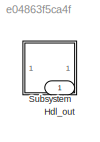
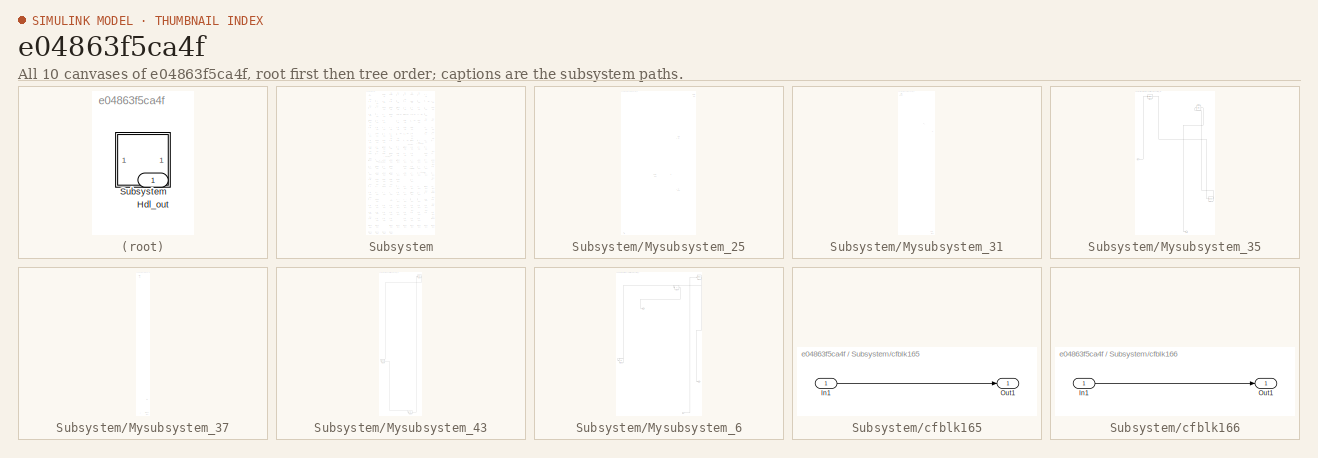
[diagram: thumbnail index - all 10 canvases of the model, root first then tree order]
MODEL slx_e04863f5ca4f
KIND model
CONFIG AbsTol = auto
CONFIG EnableMultiTasking = off
CONFIG FixedStep = auto
CONFIG MaxStep = auto
CONFIG MinStep = auto
CONFIG RelTol = 1e-3
CONFIG SampleTimeConstraint = Unconstrained
CONFIG SolverName = VariableStepAuto
CONFIG StartTime = 0.0
CONFIG StopTime = 10.0
BLOCK [Outport] Hdl_out
  OutDataTypeStr = uint8
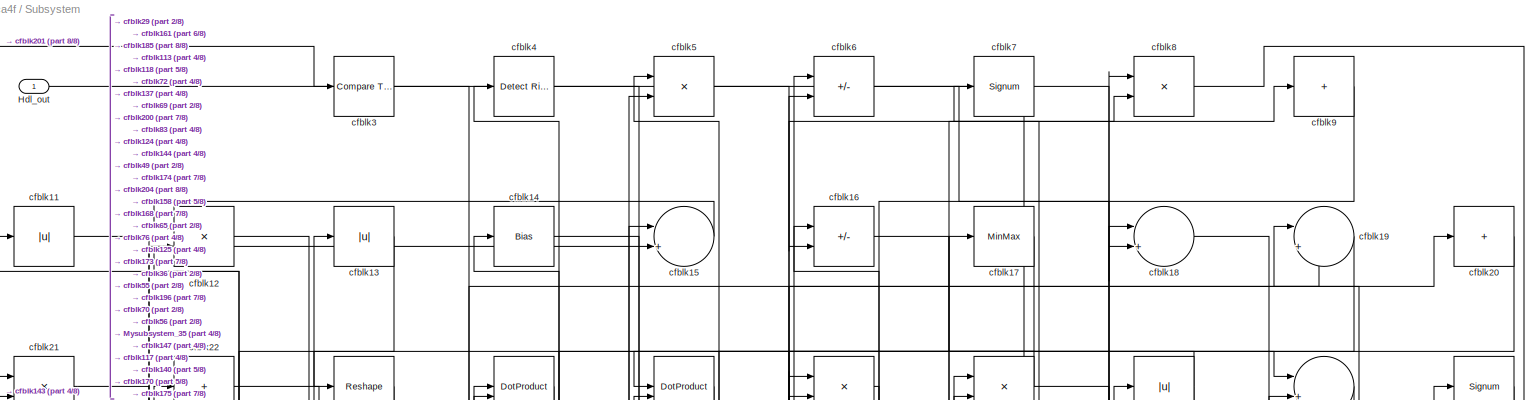
[diagram: Subsystem - part 1/8, full width, top band]
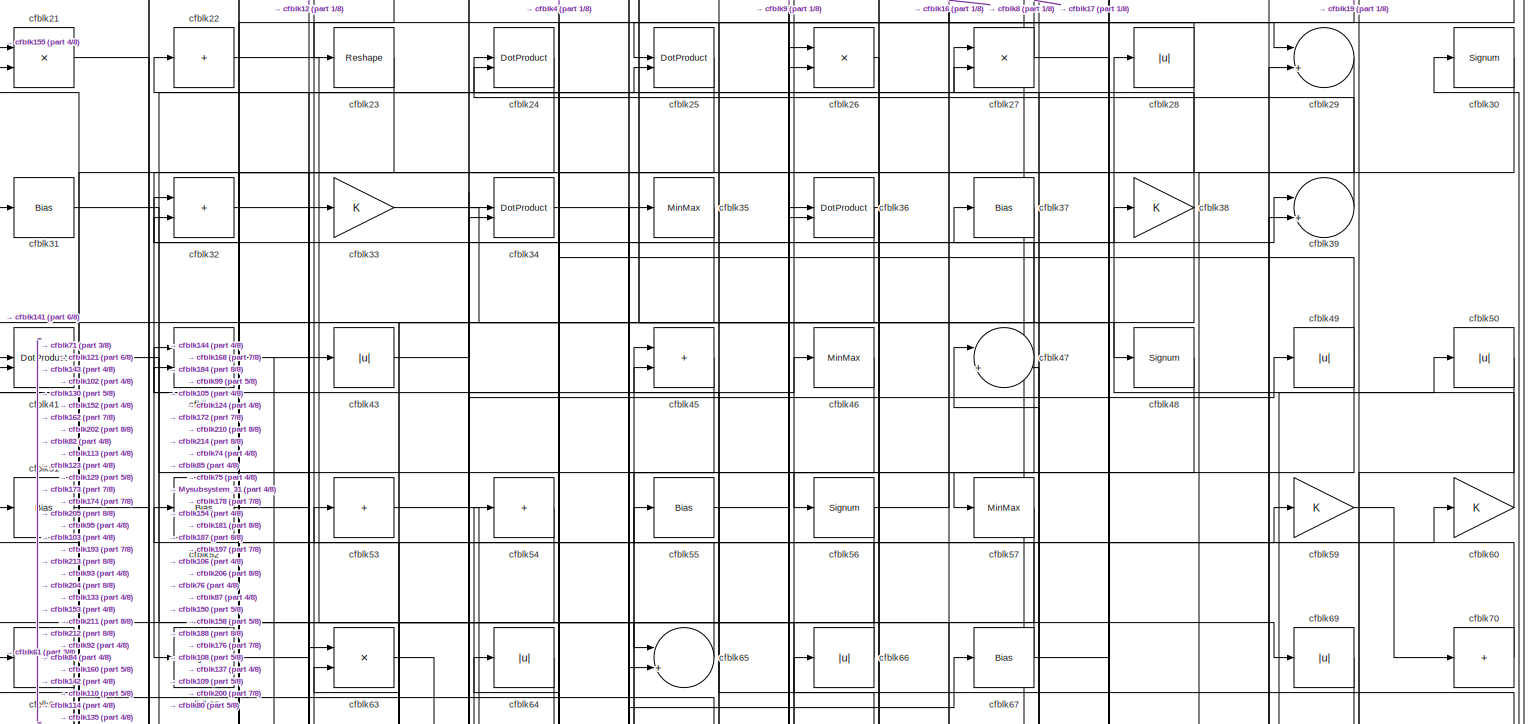
[diagram: Subsystem - part 2/8, full width, top band]
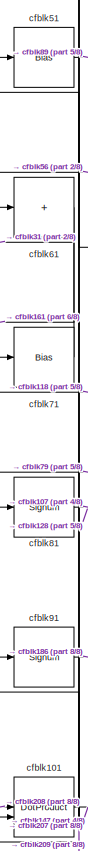
[diagram: Subsystem - part 3/8, middle left region]
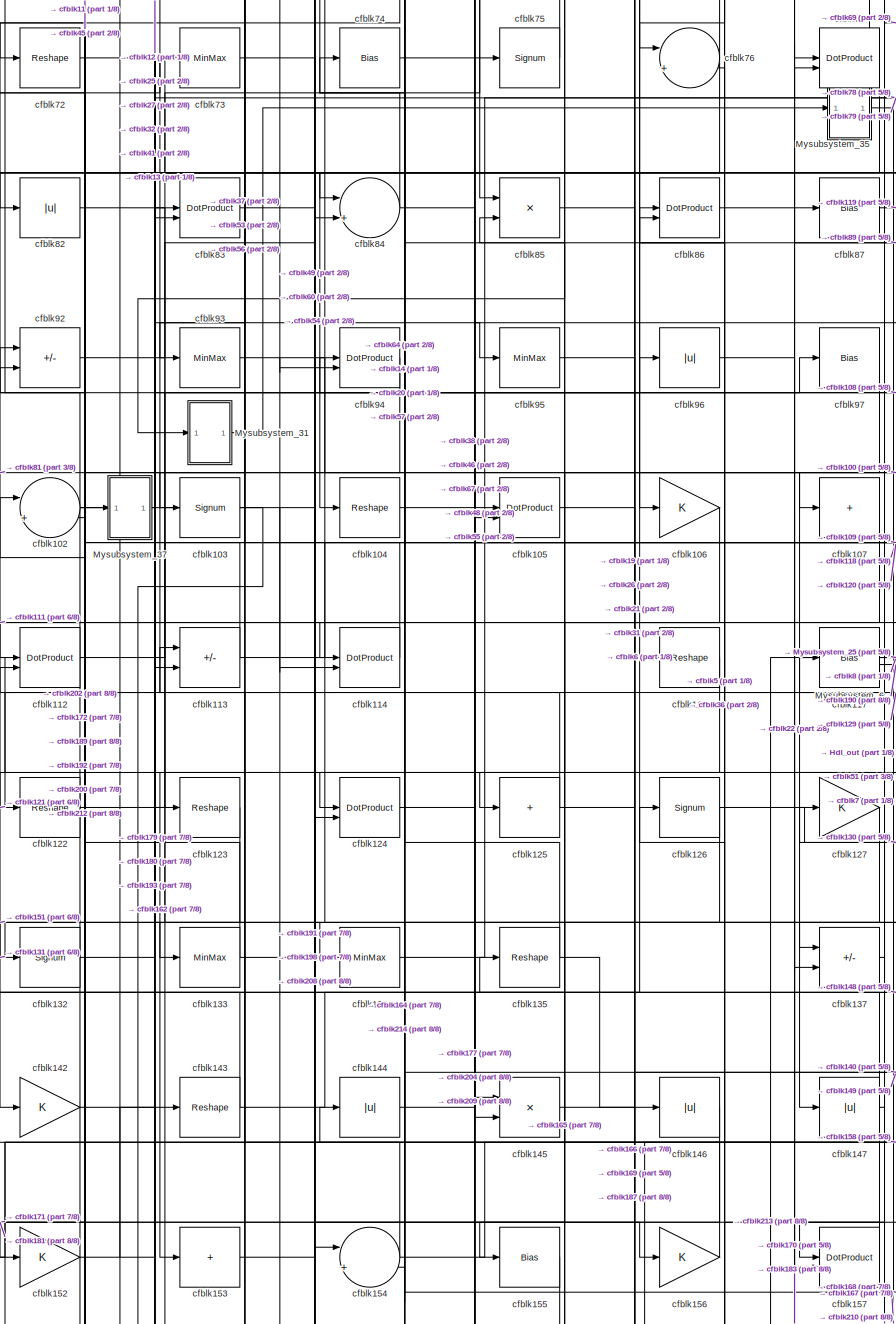
[diagram: Subsystem - part 4/8, central region]
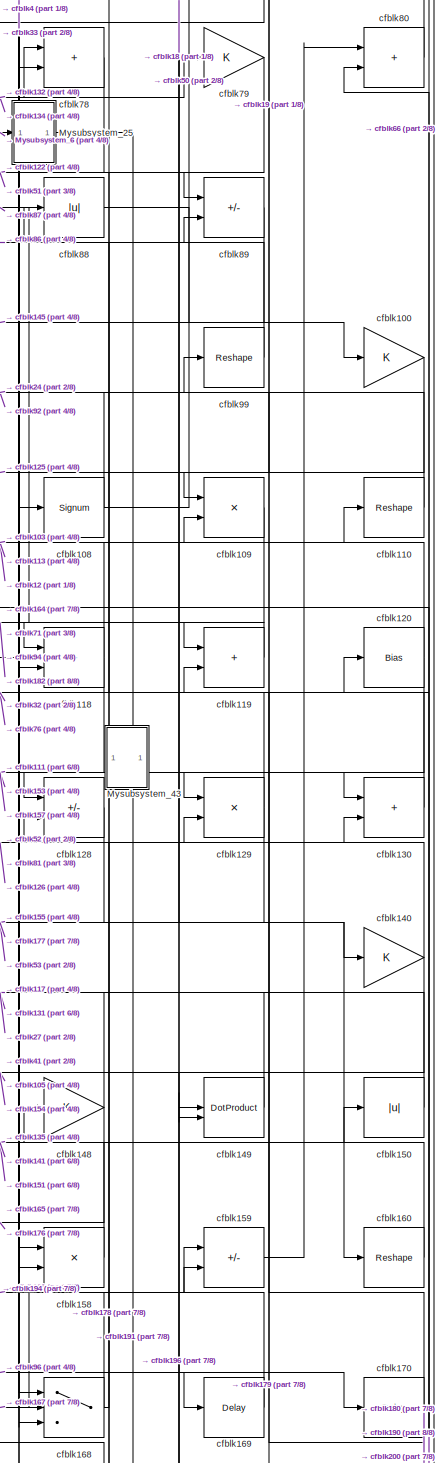
[diagram: Subsystem - part 5/8, middle right region]
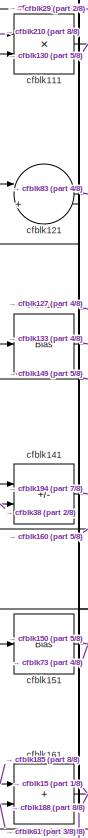
[diagram: Subsystem - part 6/8, middle left region]
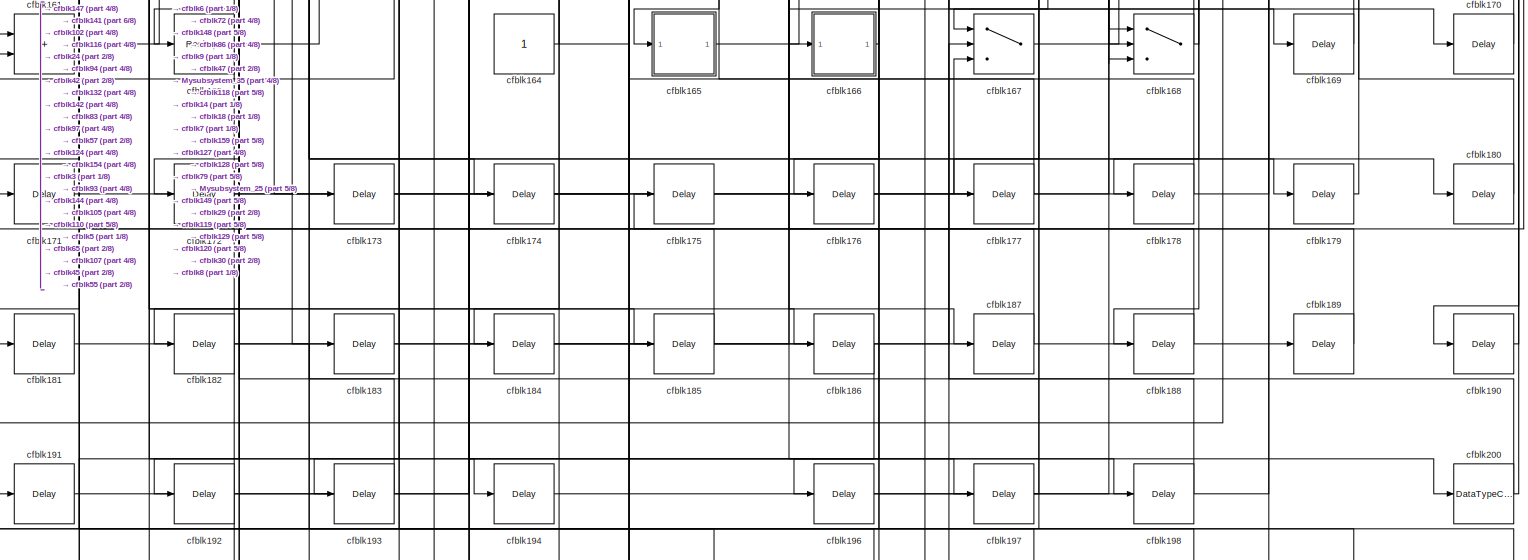
[diagram: Subsystem - part 7/8, full width, bottom band]
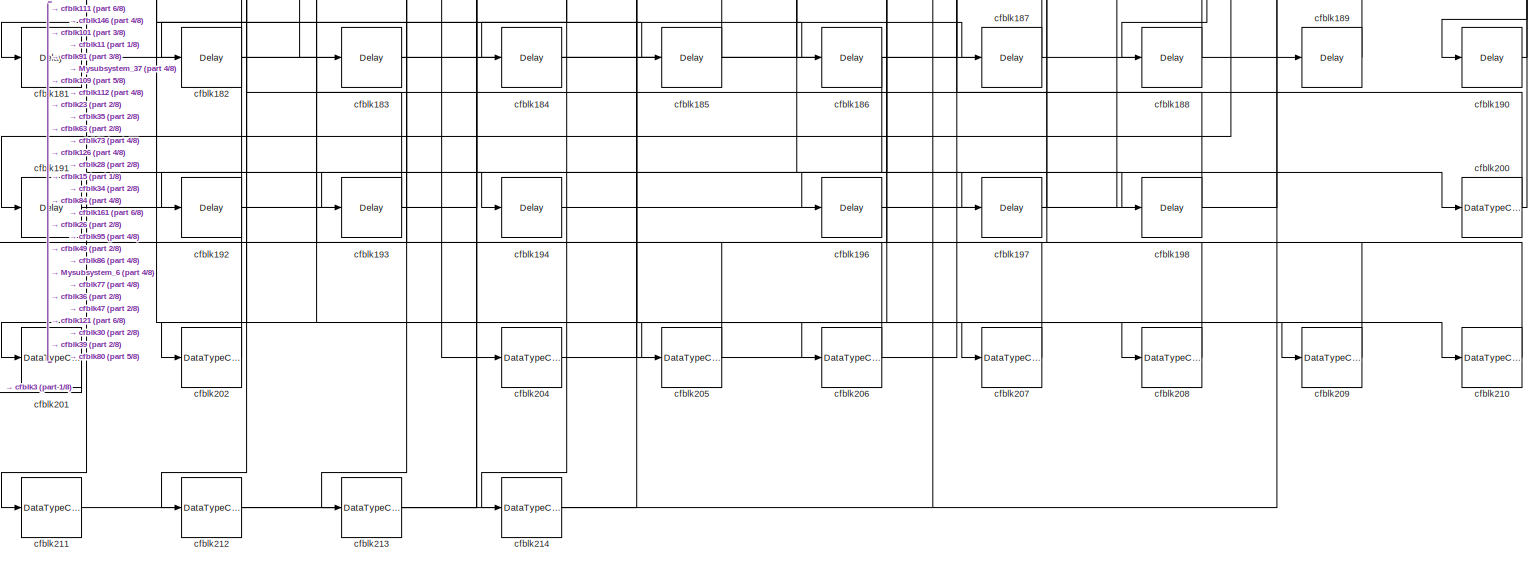
[diagram: Subsystem - part 8/8, full width, bottom band]
BLOCK [SubSystem] Subsystem
BLOCK [Outport] Subsystem/Hdl_out
  OutDataTypeStr = uint8
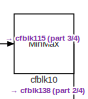
[diagram: Subsystem/Mysubsystem_25 - part 1/4, top right region]
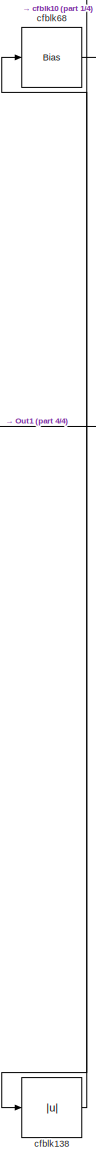
[diagram: Subsystem/Mysubsystem_25 - part 2/4, middle right region]
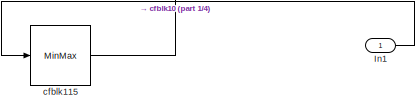
[diagram: Subsystem/Mysubsystem_25 - part 3/4, central region]
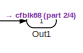
[diagram: Subsystem/Mysubsystem_25 - part 4/4, bottom left region]
BLOCK [SubSystem] Subsystem/Mysubsystem_25
  RTWFcnName = Mysubsystem_25
  RTWFcnNameOpts = User specified
  RTWFileNameOpts = Use function name
  RTWSystemCode = Reusable function
  TreatAsAtomicUnit = on
BLOCK [Inport] Subsystem/Mysubsystem_25/In1
BLOCK [Outport] Subsystem/Mysubsystem_25/Out1
BLOCK [MinMax] Subsystem/Mysubsystem_25/cfblk10
BLOCK [MinMax] Subsystem/Mysubsystem_25/cfblk115
BLOCK [Abs] Subsystem/Mysubsystem_25/cfblk138
  SaturateOnIntegerOverflow = off
BLOCK [Bias] Subsystem/Mysubsystem_25/cfblk68
  Bias = 0.0
  SaturateOnIntegerOverflow = off
BLOCK [SubSystem] Subsystem/Mysubsystem_31
  RTWFcnName = Mysubsystem_31
  RTWFcnNameOpts = User specified
  RTWFileNameOpts = Use function name
  RTWSystemCode = Reusable function
  TreatAsAtomicUnit = on
BLOCK [Inport] Subsystem/Mysubsystem_31/In1
BLOCK [Outport] Subsystem/Mysubsystem_31/Y
BLOCK [Reference] Subsystem/Mysubsystem_31/cfblk1  REF=simulink/Logic and Bit
Operations/Detect
Increase
  LibrarySourceBlock = hdlsllib/Logic and Bit\nOperations/Detect\nIncrease
  SourceBlock = simulink/Logic and Bit\nOperations/Detect\nIncrease
  SourceType = Detect Increase
BLOCK [Delay] Subsystem/Mysubsystem_31/cfblk195
  InputPortMap = u0
  SampleTime = 1
BLOCK [SubSystem] Subsystem/Mysubsystem_35
  RTWFcnName = Mysubsystem_35
  RTWFcnNameOpts = User specified
  RTWFileNameOpts = Use function name
  RTWSystemCode = Reusable function
  TreatAsAtomicUnit = on
BLOCK [Inport] Subsystem/Mysubsystem_35/In1
BLOCK [Outport] Subsystem/Mysubsystem_35/Out1
BLOCK [Signum] Subsystem/Mysubsystem_35/cfblk139
BLOCK [MinMax] Subsystem/Mysubsystem_35/cfblk44
BLOCK [Bias] Subsystem/Mysubsystem_35/cfblk58
  Bias = 0.0
  SaturateOnIntegerOverflow = off
BLOCK [SubSystem] Subsystem/Mysubsystem_37
  RTWFcnName = Mysubsystem_37
  RTWFcnNameOpts = User specified
  RTWFileNameOpts = Use function name
  RTWSystemCode = Reusable function
  TreatAsAtomicUnit = on
BLOCK [Outport] Subsystem/Mysubsystem_37/Out1
BLOCK [Reference] Subsystem/Mysubsystem_37/cfblk2  REF=simulink/Logic and Bit
Operations/Bit Set
  LibrarySourceBlock = hdlsllib/Logic and Bit\nOperations/Bit Set
  SourceBlock = simulink/Logic and Bit\nOperations/Bit Set
  SourceType = Bit Set
BLOCK [DataTypeConversion] Subsystem/Mysubsystem_37/cfblk203
  OutDataTypeStr = uint8
  RndMeth = Floor
  SaturateOnIntegerOverflow = off
BLOCK [Inport] Subsystem/Mysubsystem_37/u
BLOCK [SubSystem] Subsystem/Mysubsystem_43
  RTWFcnName = Mysubsystem_43
  RTWFcnNameOpts = User specified
  RTWFileNameOpts = Use function name
  RTWSystemCode = Reusable function
  TreatAsAtomicUnit = on
BLOCK [Reshape] Subsystem/Mysubsystem_43/cfblk136
BLOCK [Delay] Subsystem/Mysubsystem_43/cfblk199
  InputPortMap = u0
  SampleTime = 1
BLOCK [MinMax] Subsystem/Mysubsystem_43/cfblk40
BLOCK [SubSystem] Subsystem/Mysubsystem_6
  RTWFcnName = Mysubsystem_6
  RTWFcnNameOpts = User specified
  RTWFileNameOpts = Use function name
  RTWSystemCode = Reusable function
  TreatAsAtomicUnit = on
BLOCK [Inport] Subsystem/Mysubsystem_6/In1
BLOCK [Outport] Subsystem/Mysubsystem_6/Out1
BLOCK [Outport] Subsystem/Mysubsystem_6/Out2
  Port = 2
BLOCK [Display] Subsystem/Mysubsystem_6/cfblk163
  Decimation = 1
BLOCK [MinMax] Subsystem/Mysubsystem_6/cfblk90
BLOCK [Sum] Subsystem/Mysubsystem_6/cfblk98
  IconShape = rectangular
  Inputs = +
BLOCK [Gain] Subsystem/cfblk100
  OutDataTypeStr = uint8
BLOCK [DotProduct] Subsystem/cfblk101
  OutDataTypeStr = uint8
BLOCK [Sum] Subsystem/cfblk102
  Inputs = |++
  OutDataTypeStr = uint8
BLOCK [Signum] Subsystem/cfblk103
BLOCK [Reshape] Subsystem/cfblk104
BLOCK [DotProduct] Subsystem/cfblk105
  OutDataTypeStr = uint8
BLOCK [Gain] Subsystem/cfblk106
  OutDataTypeStr = uint8
BLOCK [Sum] Subsystem/cfblk107
  IconShape = rectangular
  Inputs = +
  OutDataTypeStr = uint8
BLOCK [Signum] Subsystem/cfblk108
BLOCK [Product] Subsystem/cfblk109
  Inputs = */
  OutDataTypeStr = uint8
  RndMeth = Zero
  SaturateOnIntegerOverflow = on
BLOCK [Abs] Subsystem/cfblk11
  OutDataTypeStr = uint8
  SaturateOnIntegerOverflow = off
BLOCK [Reshape] Subsystem/cfblk110
BLOCK [Product] Subsystem/cfblk111
  Inputs = */
  OutDataTypeStr = uint8
  RndMeth = Zero
  SaturateOnIntegerOverflow = on
BLOCK [DotProduct] Subsystem/cfblk112
  OutDataTypeStr = uint8
BLOCK [Sum] Subsystem/cfblk113
  IconShape = rectangular
  Inputs = +-
  OutDataTypeStr = uint8
BLOCK [DotProduct] Subsystem/cfblk114
  OutDataTypeStr = uint8
BLOCK [Reshape] Subsystem/cfblk116
BLOCK [Bias] Subsystem/cfblk117
  Bias = 0.0
  SaturateOnIntegerOverflow = off
BLOCK [Sum] Subsystem/cfblk118
  IconShape = rectangular
  OutDataTypeStr = uint8
BLOCK [Sum] Subsystem/cfblk119
  IconShape = rectangular
  OutDataTypeStr = uint8
BLOCK [Product] Subsystem/cfblk12
  Inputs = */
  OutDataTypeStr = uint8
  RndMeth = Zero
  SaturateOnIntegerOverflow = on
BLOCK [Bias] Subsystem/cfblk120
  Bias = 0.0
  SaturateOnIntegerOverflow = off
BLOCK [Sum] Subsystem/cfblk121
  Inputs = |++
  OutDataTypeStr = uint8
BLOCK [Reshape] Subsystem/cfblk122
BLOCK [Reshape] Subsystem/cfblk123
BLOCK [DotProduct] Subsystem/cfblk124
  OutDataTypeStr = uint8
BLOCK [Sum] Subsystem/cfblk125
  IconShape = rectangular
  Inputs = +
  OutDataTypeStr = uint8
BLOCK [Signum] Subsystem/cfblk126
BLOCK [Gain] Subsystem/cfblk127
  OutDataTypeStr = uint8
BLOCK [Sum] Subsystem/cfblk128
  IconShape = rectangular
  Inputs = +-
  OutDataTypeStr = uint8
BLOCK [Product] Subsystem/cfblk129
  Inputs = */
  OutDataTypeStr = uint8
  RndMeth = Zero
  SaturateOnIntegerOverflow = on
BLOCK [Abs] Subsystem/cfblk13
  OutDataTypeStr = uint8
  SaturateOnIntegerOverflow = off
BLOCK [Sum] Subsystem/cfblk130
  IconShape = rectangular
  OutDataTypeStr = uint8
BLOCK [Bias] Subsystem/cfblk131
  Bias = 0.0
  SaturateOnIntegerOverflow = off
BLOCK [Signum] Subsystem/cfblk132
BLOCK [MinMax] Subsystem/cfblk133
  OutDataTypeStr = uint8
BLOCK [MinMax] Subsystem/cfblk134
  OutDataTypeStr = uint8
BLOCK [Reshape] Subsystem/cfblk135
BLOCK [Sum] Subsystem/cfblk137
  IconShape = rectangular
  Inputs = +-
  OutDataTypeStr = uint8
BLOCK [Bias] Subsystem/cfblk14
  Bias = 0.0
  SaturateOnIntegerOverflow = off
BLOCK [Gain] Subsystem/cfblk140
  OutDataTypeStr = uint8
BLOCK [Sum] Subsystem/cfblk141
  IconShape = rectangular
  Inputs = +-
  OutDataTypeStr = uint8
BLOCK [Gain] Subsystem/cfblk142
  OutDataTypeStr = uint8
BLOCK [Reshape] Subsystem/cfblk143
BLOCK [Abs] Subsystem/cfblk144
  OutDataTypeStr = uint8
  SaturateOnIntegerOverflow = off
BLOCK [Product] Subsystem/cfblk145
  Inputs = */
  OutDataTypeStr = uint8
  RndMeth = Zero
  SaturateOnIntegerOverflow = on
BLOCK [Abs] Subsystem/cfblk146
  OutDataTypeStr = uint8
  SaturateOnIntegerOverflow = off
BLOCK [Abs] Subsystem/cfblk147
  OutDataTypeStr = uint8
  SaturateOnIntegerOverflow = off
BLOCK [Gain] Subsystem/cfblk148
  OutDataTypeStr = uint8
BLOCK [DotProduct] Subsystem/cfblk149
  OutDataTypeStr = uint8
BLOCK [Sum] Subsystem/cfblk15
  Inputs = |++
  OutDataTypeStr = uint8
BLOCK [Abs] Subsystem/cfblk150
  OutDataTypeStr = uint8
  SaturateOnIntegerOverflow = off
BLOCK [Bias] Subsystem/cfblk151
  Bias = 0.0
  SaturateOnIntegerOverflow = off
BLOCK [Gain] Subsystem/cfblk152
  OutDataTypeStr = uint8
BLOCK [Sum] Subsystem/cfblk153
  IconShape = rectangular
  Inputs = +
  OutDataTypeStr = uint8
BLOCK [Sum] Subsystem/cfblk154
  Inputs = |++
  OutDataTypeStr = uint8
BLOCK [Bias] Subsystem/cfblk155
  Bias = 0.0
  SaturateOnIntegerOverflow = off
BLOCK [Gain] Subsystem/cfblk156
  OutDataTypeStr = uint8
BLOCK [DotProduct] Subsystem/cfblk157
  OutDataTypeStr = uint8
BLOCK [Product] Subsystem/cfblk158
  Inputs = */
  OutDataTypeStr = uint8
  RndMeth = Zero
  SaturateOnIntegerOverflow = on
BLOCK [Sum] Subsystem/cfblk159
  IconShape = rectangular
  Inputs = +-
  OutDataTypeStr = uint8
BLOCK [Sum] Subsystem/cfblk16
  IconShape = rectangular
  Inputs = +-
  OutDataTypeStr = uint8
BLOCK [Reshape] Subsystem/cfblk160
BLOCK [Sum] Subsystem/cfblk161
  IconShape = rectangular
  OutDataTypeStr = uint8
BLOCK [Reshape] Subsystem/cfblk162
BLOCK [Constant] Subsystem/cfblk164
  OutDataTypeStr = uint8
  SampleTime = -1
BLOCK [SubSystem] Subsystem/cfblk165
  LibrarySourceBlock = hdlsllib/Ports &\nSubsystems/Subsystem
BLOCK [Inport] Subsystem/cfblk165/In1
BLOCK [Outport] Subsystem/cfblk165/Out1
BLOCK [SubSystem] Subsystem/cfblk166
  LibrarySourceBlock = hdlsllib/Ports &\nSubsystems/Subsystem
BLOCK [Inport] Subsystem/cfblk166/In1
BLOCK [Outport] Subsystem/cfblk166/Out1
BLOCK [Switch] Subsystem/cfblk167
  InputSameDT = off
  OutDataTypeStr = uint8
  SaturateOnIntegerOverflow = off
BLOCK [Switch] Subsystem/cfblk168
  InputSameDT = off
  OutDataTypeStr = uint8
  SaturateOnIntegerOverflow = off
BLOCK [Delay] Subsystem/cfblk169
  InputPortMap = u0
  SampleTime = 1
BLOCK [MinMax] Subsystem/cfblk17
  OutDataTypeStr = uint8
BLOCK [Delay] Subsystem/cfblk170
  InputPortMap = u0
  SampleTime = 1
BLOCK [Delay] Subsystem/cfblk171
  InputPortMap = u0
  SampleTime = 1
BLOCK [Delay] Subsystem/cfblk172
  InputPortMap = u0
  SampleTime = 1
BLOCK [Delay] Subsystem/cfblk173
  InputPortMap = u0
  SampleTime = 1
BLOCK [Delay] Subsystem/cfblk174
  InputPortMap = u0
  SampleTime = 1
BLOCK [Delay] Subsystem/cfblk175
  InputPortMap = u0
  SampleTime = 1
BLOCK [Delay] Subsystem/cfblk176
  InputPortMap = u0
  SampleTime = 1
BLOCK [Delay] Subsystem/cfblk177
  InputPortMap = u0
  SampleTime = 1
BLOCK [Delay] Subsystem/cfblk178
  InputPortMap = u0
  SampleTime = 1
BLOCK [Delay] Subsystem/cfblk179
  InputPortMap = u0
  SampleTime = 1
BLOCK [Sum] Subsystem/cfblk18
  Inputs = |++
  OutDataTypeStr = uint8
BLOCK [Delay] Subsystem/cfblk180
  InputPortMap = u0
  SampleTime = 1
BLOCK [Delay] Subsystem/cfblk181
  InputPortMap = u0
  SampleTime = 1
BLOCK [Delay] Subsystem/cfblk182
  InputPortMap = u0
  SampleTime = 1
BLOCK [Delay] Subsystem/cfblk183
  InputPortMap = u0
  SampleTime = 1
BLOCK [Delay] Subsystem/cfblk184
  InputPortMap = u0
  SampleTime = 1
BLOCK [Delay] Subsystem/cfblk185
  InputPortMap = u0
  SampleTime = 1
BLOCK [Delay] Subsystem/cfblk186
  InputPortMap = u0
  SampleTime = 1
BLOCK [Delay] Subsystem/cfblk187
  InputPortMap = u0
  SampleTime = 1
BLOCK [Delay] Subsystem/cfblk188
  InputPortMap = u0
  SampleTime = 1
BLOCK [Delay] Subsystem/cfblk189
  InputPortMap = u0
  SampleTime = 1
BLOCK [Sum] Subsystem/cfblk19
  Inputs = |++
  OutDataTypeStr = uint8
BLOCK [Delay] Subsystem/cfblk190
  InputPortMap = u0
  SampleTime = 1
BLOCK [Delay] Subsystem/cfblk191
  InputPortMap = u0
  SampleTime = 1
BLOCK [Delay] Subsystem/cfblk192
  InputPortMap = u0
  SampleTime = 1
BLOCK [Delay] Subsystem/cfblk193
  InputPortMap = u0
  SampleTime = 1
BLOCK [Delay] Subsystem/cfblk194
  InputPortMap = u0
  SampleTime = 1
BLOCK [Delay] Subsystem/cfblk196
  InputPortMap = u0
  SampleTime = 1
BLOCK [Delay] Subsystem/cfblk197
  InputPortMap = u0
  SampleTime = 1
BLOCK [Delay] Subsystem/cfblk198
  InputPortMap = u0
  SampleTime = 1
BLOCK [Sum] Subsystem/cfblk20
  IconShape = rectangular
  Inputs = +
  OutDataTypeStr = uint8
BLOCK [DataTypeConversion] Subsystem/cfblk200
  OutDataTypeStr = uint8
  RndMeth = Floor
  SaturateOnIntegerOverflow = off
BLOCK [DataTypeConversion] Subsystem/cfblk201
  OutDataTypeStr = uint8
  RndMeth = Floor
  SaturateOnIntegerOverflow = off
BLOCK [DataTypeConversion] Subsystem/cfblk202
  OutDataTypeStr = uint8
  RndMeth = Floor
  SaturateOnIntegerOverflow = off
BLOCK [DataTypeConversion] Subsystem/cfblk204
  OutDataTypeStr = uint8
  RndMeth = Floor
  SaturateOnIntegerOverflow = off
BLOCK [DataTypeConversion] Subsystem/cfblk205
  OutDataTypeStr = uint8
  RndMeth = Floor
  SaturateOnIntegerOverflow = off
BLOCK [DataTypeConversion] Subsystem/cfblk206
  OutDataTypeStr = uint8
  RndMeth = Floor
  SaturateOnIntegerOverflow = off
BLOCK [DataTypeConversion] Subsystem/cfblk207
  OutDataTypeStr = uint8
  RndMeth = Floor
  SaturateOnIntegerOverflow = off
BLOCK [DataTypeConversion] Subsystem/cfblk208
  OutDataTypeStr = uint8
  RndMeth = Floor
  SaturateOnIntegerOverflow = off
BLOCK [DataTypeConversion] Subsystem/cfblk209
  OutDataTypeStr = uint8
  RndMeth = Floor
  SaturateOnIntegerOverflow = off
BLOCK [Product] Subsystem/cfblk21
  Inputs = */
  OutDataTypeStr = uint8
  RndMeth = Zero
  SaturateOnIntegerOverflow = on
BLOCK [DataTypeConversion] Subsystem/cfblk210
  OutDataTypeStr = uint8
  RndMeth = Floor
  SaturateOnIntegerOverflow = off
BLOCK [DataTypeConversion] Subsystem/cfblk211
  OutDataTypeStr = uint8
  RndMeth = Floor
  SaturateOnIntegerOverflow = off
BLOCK [DataTypeConversion] Subsystem/cfblk212
  OutDataTypeStr = uint8
  RndMeth = Floor
  SaturateOnIntegerOverflow = off
BLOCK [DataTypeConversion] Subsystem/cfblk213
  OutDataTypeStr = uint8
  RndMeth = Floor
  SaturateOnIntegerOverflow = off
BLOCK [DataTypeConversion] Subsystem/cfblk214
  OutDataTypeStr = uint8
  RndMeth = Floor
  SaturateOnIntegerOverflow = off
BLOCK [Sum] Subsystem/cfblk22
  IconShape = rectangular
  Inputs = +
  OutDataTypeStr = uint8
BLOCK [Reshape] Subsystem/cfblk23
BLOCK [DotProduct] Subsystem/cfblk24
  OutDataTypeStr = uint8
BLOCK [DotProduct] Subsystem/cfblk25
  OutDataTypeStr = uint8
BLOCK [Product] Subsystem/cfblk26
  Inputs = */
  OutDataTypeStr = uint8
  RndMeth = Zero
  SaturateOnIntegerOverflow = on
BLOCK [Product] Subsystem/cfblk27
  Inputs = */
  OutDataTypeStr = uint8
  RndMeth = Zero
  SaturateOnIntegerOverflow = on
BLOCK [Abs] Subsystem/cfblk28
  OutDataTypeStr = uint8
  SaturateOnIntegerOverflow = off
BLOCK [Sum] Subsystem/cfblk29
  Inputs = |++
  OutDataTypeStr = uint8
BLOCK [Reference] Subsystem/cfblk3  REF=hdlsllib/Logic and Bit
Operations/Compare
To Zero
  SourceBlock = hdlsllib/Logic and Bit\nOperations/Compare\nTo Zero
  SourceType = Compare To Zero
BLOCK [Signum] Subsystem/cfblk30
BLOCK [Bias] Subsystem/cfblk31
  Bias = 0.0
  SaturateOnIntegerOverflow = off
BLOCK [Sum] Subsystem/cfblk32
  IconShape = rectangular
  OutDataTypeStr = uint8
BLOCK [Gain] Subsystem/cfblk33
  OutDataTypeStr = uint8
BLOCK [DotProduct] Subsystem/cfblk34
  OutDataTypeStr = uint8
BLOCK [MinMax] Subsystem/cfblk35
  OutDataTypeStr = uint8
BLOCK [DotProduct] Subsystem/cfblk36
  OutDataTypeStr = uint8
BLOCK [Bias] Subsystem/cfblk37
  Bias = 0.0
  SaturateOnIntegerOverflow = off
BLOCK [Gain] Subsystem/cfblk38
  OutDataTypeStr = uint8
BLOCK [Sum] Subsystem/cfblk39
  Inputs = |++
  OutDataTypeStr = uint8
BLOCK [Reference] Subsystem/cfblk4  REF=hdlsllib/Logic and Bit
Operations/Detect Rise
Positive
  SourceBlock = hdlsllib/Logic and Bit\nOperations/Detect Rise\nPositive
  SourceType = Detect Rise Positive
BLOCK [DotProduct] Subsystem/cfblk41
  OutDataTypeStr = uint8
BLOCK [Product] Subsystem/cfblk42
  Inputs = */
  OutDataTypeStr = uint8
  RndMeth = Zero
  SaturateOnIntegerOverflow = on
BLOCK [Abs] Subsystem/cfblk43
  OutDataTypeStr = uint8
  SaturateOnIntegerOverflow = off
BLOCK [Sum] Subsystem/cfblk45
  IconShape = rectangular
  OutDataTypeStr = uint8
BLOCK [MinMax] Subsystem/cfblk46
  OutDataTypeStr = uint8
BLOCK [Sum] Subsystem/cfblk47
  Inputs = |++
  OutDataTypeStr = uint8
BLOCK [Signum] Subsystem/cfblk48
BLOCK [Abs] Subsystem/cfblk49
  OutDataTypeStr = uint8
  SaturateOnIntegerOverflow = off
BLOCK [Product] Subsystem/cfblk5
  Inputs = */
  OutDataTypeStr = uint8
  RndMeth = Zero
  SaturateOnIntegerOverflow = on
BLOCK [Abs] Subsystem/cfblk50
  OutDataTypeStr = uint8
  SaturateOnIntegerOverflow = off
BLOCK [Bias] Subsystem/cfblk51
  Bias = 0.0
  SaturateOnIntegerOverflow = off
BLOCK [Bias] Subsystem/cfblk52
  Bias = 0.0
  SaturateOnIntegerOverflow = off
BLOCK [Sum] Subsystem/cfblk53
  IconShape = rectangular
  Inputs = +
  OutDataTypeStr = uint8
BLOCK [Sum] Subsystem/cfblk54
  IconShape = rectangular
  Inputs = +
  OutDataTypeStr = uint8
BLOCK [Bias] Subsystem/cfblk55
  Bias = 0.0
  SaturateOnIntegerOverflow = off
BLOCK [Signum] Subsystem/cfblk56
BLOCK [MinMax] Subsystem/cfblk57
  OutDataTypeStr = uint8
BLOCK [Gain] Subsystem/cfblk59
  OutDataTypeStr = uint8
BLOCK [Sum] Subsystem/cfblk6
  IconShape = rectangular
  Inputs = +-
  OutDataTypeStr = uint8
BLOCK [Gain] Subsystem/cfblk60
  OutDataTypeStr = uint8
BLOCK [Sum] Subsystem/cfblk61
  IconShape = rectangular
  Inputs = +
  OutDataTypeStr = uint8
BLOCK [Signum] Subsystem/cfblk62
BLOCK [Product] Subsystem/cfblk63
  Inputs = */
  OutDataTypeStr = uint8
  RndMeth = Zero
  SaturateOnIntegerOverflow = on
BLOCK [Abs] Subsystem/cfblk64
  OutDataTypeStr = uint8
  SaturateOnIntegerOverflow = off
BLOCK [Sum] Subsystem/cfblk65
  Inputs = |++
  OutDataTypeStr = uint8
BLOCK [Abs] Subsystem/cfblk66
  OutDataTypeStr = uint8
  SaturateOnIntegerOverflow = off
BLOCK [Bias] Subsystem/cfblk67
  Bias = 0.0
  SaturateOnIntegerOverflow = off
BLOCK [Abs] Subsystem/cfblk69
  OutDataTypeStr = uint8
  SaturateOnIntegerOverflow = off
BLOCK [Signum] Subsystem/cfblk7
BLOCK [Sum] Subsystem/cfblk70
  IconShape = rectangular
  Inputs = +
  OutDataTypeStr = uint8
BLOCK [Bias] Subsystem/cfblk71
  Bias = 0.0
  SaturateOnIntegerOverflow = off
BLOCK [Reshape] Subsystem/cfblk72
BLOCK [MinMax] Subsystem/cfblk73
  OutDataTypeStr = uint8
BLOCK [Bias] Subsystem/cfblk74
  Bias = 0.0
  SaturateOnIntegerOverflow = off
BLOCK [Signum] Subsystem/cfblk75
BLOCK [Sum] Subsystem/cfblk76
  Inputs = |++
  OutDataTypeStr = uint8
BLOCK [DotProduct] Subsystem/cfblk77
  OutDataTypeStr = uint8
BLOCK [Sum] Subsystem/cfblk78
  IconShape = rectangular
  OutDataTypeStr = uint8
BLOCK [Gain] Subsystem/cfblk79
  OutDataTypeStr = uint8
BLOCK [Product] Subsystem/cfblk8
  Inputs = */
  OutDataTypeStr = uint8
  RndMeth = Zero
  SaturateOnIntegerOverflow = on
BLOCK [Sum] Subsystem/cfblk80
  IconShape = rectangular
  OutDataTypeStr = uint8
BLOCK [Signum] Subsystem/cfblk81
BLOCK [Abs] Subsystem/cfblk82
  OutDataTypeStr = uint8
  SaturateOnIntegerOverflow = off
BLOCK [DotProduct] Subsystem/cfblk83
  OutDataTypeStr = uint8
BLOCK [Sum] Subsystem/cfblk84
  Inputs = |++
  OutDataTypeStr = uint8
BLOCK [Product] Subsystem/cfblk85
  Inputs = */
  OutDataTypeStr = uint8
  RndMeth = Zero
  SaturateOnIntegerOverflow = on
BLOCK [DotProduct] Subsystem/cfblk86
  OutDataTypeStr = uint8
BLOCK [Bias] Subsystem/cfblk87
  Bias = 0.0
  SaturateOnIntegerOverflow = off
BLOCK [Abs] Subsystem/cfblk88
  OutDataTypeStr = uint8
  SaturateOnIntegerOverflow = off
BLOCK [Sum] Subsystem/cfblk89
  IconShape = rectangular
  Inputs = +-
  OutDataTypeStr = uint8
BLOCK [Sum] Subsystem/cfblk9
  IconShape = rectangular
  Inputs = +
  OutDataTypeStr = uint8
BLOCK [Signum] Subsystem/cfblk91
BLOCK [Sum] Subsystem/cfblk92
  IconShape = rectangular
  Inputs = +-
  OutDataTypeStr = uint8
BLOCK [MinMax] Subsystem/cfblk93
  OutDataTypeStr = uint8
BLOCK [DotProduct] Subsystem/cfblk94
  OutDataTypeStr = uint8
BLOCK [MinMax] Subsystem/cfblk95
  OutDataTypeStr = uint8
BLOCK [Abs] Subsystem/cfblk96
  OutDataTypeStr = uint8
  SaturateOnIntegerOverflow = off
BLOCK [Bias] Subsystem/cfblk97
  Bias = 0.0
  SaturateOnIntegerOverflow = off
BLOCK [Reshape] Subsystem/cfblk99
LINE Subsystem/Mysubsystem_25/In1:1 -> Subsystem/Mysubsystem_25/cfblk115:1
LINE Subsystem/Mysubsystem_25/cfblk10:1 -> Subsystem/Mysubsystem_25/cfblk138:1
LINE Subsystem/Mysubsystem_25/cfblk115:1 -> Subsystem/Mysubsystem_25/cfblk10:1
LINE Subsystem/Mysubsystem_25/cfblk138:1 -> Subsystem/Mysubsystem_25/cfblk68:1
LINE Subsystem/Mysubsystem_25/cfblk68:1 -> Subsystem/Mysubsystem_25/Out1:1
LINE Subsystem/Mysubsystem_25:1 -> Subsystem/cfblk191:1
LINE Subsystem/Mysubsystem_31/In1:1 -> Subsystem/Mysubsystem_31/cfblk195:1
LINE Subsystem/Mysubsystem_31/cfblk195:1 -> Subsystem/Mysubsystem_31/cfblk1:1
LINE Subsystem/Mysubsystem_31/cfblk1:1 -> Subsystem/Mysubsystem_31/Y:1
LINE Subsystem/Mysubsystem_31:1 -> Subsystem/Mysubsystem_35:1
LINE Subsystem/Mysubsystem_35/In1:1 -> Subsystem/Mysubsystem_35/cfblk44:1
LINE Subsystem/Mysubsystem_35/cfblk139:1 -> Subsystem/Mysubsystem_35/cfblk58:1
LINE Subsystem/Mysubsystem_35/cfblk44:1 -> Subsystem/Mysubsystem_35/cfblk139:1
LINE Subsystem/Mysubsystem_35/cfblk58:1 -> Subsystem/Mysubsystem_35/Out1:1
NET Subsystem/Mysubsystem_35:1 -> Subsystem/Hdl_out:1, Subsystem/cfblk167:1
LINE Subsystem/Mysubsystem_37/cfblk203:1 -> Subsystem/Mysubsystem_37/Out1:1
LINE Subsystem/Mysubsystem_37/cfblk2:1 -> Subsystem/Mysubsystem_37/cfblk203:1
LINE Subsystem/Mysubsystem_37/u:1 -> Subsystem/Mysubsystem_37/cfblk2:1
LINE Subsystem/Mysubsystem_37:1 -> Subsystem/cfblk183:1
LINE Subsystem/Mysubsystem_43/cfblk136:1 -> Subsystem/Mysubsystem_43/cfblk199:1
LINE Subsystem/Mysubsystem_43/cfblk199:1 -> Subsystem/Mysubsystem_43/cfblk40:1
LINE Subsystem/Mysubsystem_43/cfblk40:1 -> Subsystem/Mysubsystem_43/cfblk136:1
LINE Subsystem/Mysubsystem_6/In1:1 -> Subsystem/Mysubsystem_6/cfblk90:1
NET Subsystem/Mysubsystem_6/cfblk90:1 -> Subsystem/Mysubsystem_6/Out2:1, Subsystem/Mysubsystem_6/cfblk163:1, Subsystem/Mysubsystem_6/cfblk98:1
LINE Subsystem/Mysubsystem_6/cfblk98:1 -> Subsystem/Mysubsystem_6/Out1:1
LINE Subsystem/Mysubsystem_6:1 -> Subsystem/Mysubsystem_25:1
LINE Subsystem/Mysubsystem_6:2 -> Subsystem/cfblk190:1
LINE Subsystem/cfblk100:1 -> Subsystem/cfblk125:1
LINE Subsystem/cfblk101:1 -> Subsystem/cfblk207:1
NET Subsystem/cfblk102:1 -> Subsystem/cfblk25:2, Subsystem/cfblk27:1
NET Subsystem/cfblk103:1 -> Subsystem/cfblk109:2, Subsystem/cfblk114:2, Subsystem/cfblk156:1
LINE Subsystem/cfblk104:1 -> Subsystem/cfblk145:1
LINE Subsystem/cfblk105:1 -> Subsystem/cfblk149:2
LINE Subsystem/cfblk106:1 -> Subsystem/cfblk111:2
LINE Subsystem/cfblk107:1 -> Subsystem/cfblk165:1
NET Subsystem/cfblk108:1 -> Subsystem/cfblk50:1, Subsystem/cfblk92:1
LINE Subsystem/cfblk109:1 -> Subsystem/cfblk182:1
LINE Subsystem/cfblk110:1 -> Subsystem/cfblk24:2
NET Subsystem/cfblk111:1 -> Subsystem/cfblk130:1, Subsystem/cfblk201:1
NET Subsystem/cfblk112:1 -> Subsystem/cfblk212:1, Subsystem/cfblk84:2
NET Subsystem/cfblk113:1 -> Subsystem/cfblk11:1, Subsystem/cfblk78:2
LINE Subsystem/cfblk114:1 -> Subsystem/cfblk53:1
LINE Subsystem/cfblk116:1 -> Subsystem/cfblk172:1
LINE Subsystem/cfblk117:1 -> Subsystem/cfblk8:1
NET Subsystem/cfblk118:1 -> Subsystem/cfblk12:2, Subsystem/cfblk153:1, Subsystem/cfblk71:1
LINE Subsystem/cfblk119:1 -> Subsystem/cfblk118:1
LINE Subsystem/cfblk11:1 -> Subsystem/cfblk185:1
NET Subsystem/cfblk120:1 -> Subsystem/cfblk157:2, Subsystem/cfblk94:1
LINE Subsystem/cfblk121:1 -> Subsystem/cfblk83:2
LINE Subsystem/cfblk122:1 -> Subsystem/cfblk75:1
LINE Subsystem/cfblk123:1 -> Subsystem/cfblk132:1
LINE Subsystem/cfblk124:1 -> Subsystem/cfblk38:1
NET Subsystem/cfblk125:1 -> Subsystem/cfblk13:1, Subsystem/cfblk19:2
NET Subsystem/cfblk126:1 -> Subsystem/cfblk130:2, Subsystem/cfblk214:1
LINE Subsystem/cfblk127:1 -> Subsystem/cfblk151:1
LINE Subsystem/cfblk128:1 -> Subsystem/cfblk177:1
NET Subsystem/cfblk129:1 -> Subsystem/cfblk155:1, Subsystem/cfblk76:2, Subsystem/cfblk88:1
NET Subsystem/cfblk12:1 -> Subsystem/cfblk137:2, Subsystem/cfblk69:1
LINE Subsystem/cfblk130:1 -> Subsystem/cfblk32:1
LINE Subsystem/cfblk131:1 -> Subsystem/cfblk133:1
NET Subsystem/cfblk132:1 -> Subsystem/cfblk179:1, Subsystem/cfblk79:1
NET Subsystem/cfblk133:1 -> Subsystem/cfblk49:1, Subsystem/cfblk92:2
LINE Subsystem/cfblk134:1 -> Subsystem/cfblk78:1
NET Subsystem/cfblk135:1 -> Subsystem/cfblk146:1, Subsystem/cfblk64:1
LINE Subsystem/cfblk137:1 -> Subsystem/cfblk157:1
LINE Subsystem/cfblk13:1 -> Subsystem/cfblk72:1
NET Subsystem/cfblk140:1 -> Subsystem/cfblk154:2, Subsystem/cfblk99:1
LINE Subsystem/cfblk141:1 -> Subsystem/cfblk194:1
LINE Subsystem/cfblk142:1 -> Subsystem/cfblk180:1
NET Subsystem/cfblk143:1 -> Subsystem/cfblk21:2, Subsystem/cfblk6:1
NET Subsystem/cfblk144:1 -> Subsystem/cfblk14:1, Subsystem/cfblk67:1
LINE Subsystem/cfblk145:1 -> Subsystem/cfblk169:1
LINE Subsystem/cfblk146:1 -> Subsystem/cfblk181:1
NET Subsystem/cfblk147:1 -> Subsystem/cfblk171:1, Subsystem/cfblk51:1, Subsystem/cfblk7:1, Subsystem/cfblk85:2
NET Subsystem/cfblk148:1 -> Subsystem/cfblk117:1, Subsystem/cfblk176:1
LINE Subsystem/cfblk149:1 -> Subsystem/cfblk131:1
LINE Subsystem/cfblk14:1 -> Subsystem/cfblk168:1
NET Subsystem/cfblk150:1 -> Subsystem/cfblk27:2, Subsystem/cfblk41:2
NET Subsystem/cfblk151:1 -> Subsystem/cfblk150:1, Subsystem/cfblk73:1
NET Subsystem/cfblk152:1 -> Subsystem/cfblk143:1, Subsystem/cfblk96:1
LINE Subsystem/cfblk153:1 -> Subsystem/cfblk46:1
NET Subsystem/cfblk154:1 -> Subsystem/cfblk113:1, Subsystem/cfblk26:2
LINE Subsystem/cfblk155:1 -> Subsystem/cfblk21:1
LINE Subsystem/cfblk156:1 -> Subsystem/cfblk74:1
LINE Subsystem/cfblk157:1 -> Subsystem/cfblk126:1
LINE Subsystem/cfblk158:1 -> Subsystem/cfblk135:1
LINE Subsystem/cfblk159:1 -> Subsystem/cfblk80:1
LINE Subsystem/cfblk15:1 -> Subsystem/cfblk12:1
LINE Subsystem/cfblk160:1 -> Subsystem/cfblk141:1
NET Subsystem/cfblk161:1 -> Subsystem/cfblk15:2, Subsystem/cfblk17:1
LINE Subsystem/cfblk162:1 -> Subsystem/cfblk97:1
NET Subsystem/cfblk164:1 -> Subsystem/cfblk110:1, Subsystem/cfblk144:1
LINE Subsystem/cfblk165/In1:1 -> Subsystem/cfblk165/Out1:1
LINE Subsystem/cfblk165:1 -> Subsystem/cfblk148:1
LINE Subsystem/cfblk166/In1:1 -> Subsystem/cfblk166/Out1:1
LINE Subsystem/cfblk166:1 -> Subsystem/cfblk86:1
LINE Subsystem/cfblk167:1 -> Subsystem/cfblk159:1
NET Subsystem/cfblk168:1 -> Subsystem/cfblk127:1, Subsystem/cfblk128:2, Subsystem/cfblk42:1
LINE Subsystem/cfblk169:1 -> Subsystem/cfblk159:2
LINE Subsystem/cfblk16:1 -> Subsystem/cfblk29:1
LINE Subsystem/cfblk170:1 -> Subsystem/cfblk19:1
LINE Subsystem/cfblk171:1 -> Subsystem/cfblk167:3
LINE Subsystem/cfblk172:1 -> Subsystem/cfblk65:2
LINE Subsystem/cfblk173:1 -> Subsystem/cfblk6:2
LINE Subsystem/cfblk174:1 -> Subsystem/cfblk5:2
LINE Subsystem/cfblk175:1 -> Subsystem/cfblk18:1
LINE Subsystem/cfblk176:1 -> Subsystem/cfblk29:2
LINE Subsystem/cfblk177:1 -> Subsystem/cfblk105:1
LINE Subsystem/cfblk178:1 -> Subsystem/cfblk45:2
LINE Subsystem/cfblk179:1 -> Subsystem/cfblk119:2
LINE Subsystem/cfblk17:1 -> Subsystem/cfblk36:2
LINE Subsystem/cfblk180:1 -> Subsystem/cfblk129:2
LINE Subsystem/cfblk181:1 -> Subsystem/cfblk26:1
LINE Subsystem/cfblk182:1 -> Subsystem/cfblk205:1
LINE Subsystem/cfblk183:1 -> Subsystem/cfblk77:2
LINE Subsystem/cfblk184:1 -> Subsystem/cfblk39:2
LINE Subsystem/cfblk185:1 -> Subsystem/cfblk161:1
LINE Subsystem/cfblk186:1 -> Subsystem/cfblk211:1
LINE Subsystem/cfblk187:1 -> Subsystem/cfblk36:1
LINE Subsystem/cfblk188:1 -> Subsystem/cfblk121:1
LINE Subsystem/cfblk189:1 -> Subsystem/cfblk112:2
LINE Subsystem/cfblk18:1 -> Subsystem/cfblk140:1
LINE Subsystem/cfblk190:1 -> Subsystem/cfblk80:2
LINE Subsystem/cfblk191:1 -> Subsystem/cfblk154:1
LINE Subsystem/cfblk192:1 -> Subsystem/cfblk124:2
LINE Subsystem/cfblk193:1 -> Subsystem/cfblk83:1
LINE Subsystem/cfblk194:1 -> Subsystem/cfblk118:2
LINE Subsystem/cfblk196:1 -> Subsystem/cfblk149:1
LINE Subsystem/cfblk197:1 -> Subsystem/cfblk47:2
LINE Subsystem/cfblk198:1 -> Subsystem/cfblk167:2
LINE Subsystem/cfblk19:1 -> Subsystem/cfblk65:1
NET Subsystem/cfblk200:1 -> Subsystem/cfblk102:1, Subsystem/cfblk120:1, Subsystem/cfblk30:1
LINE Subsystem/cfblk201:1 -> Subsystem/cfblk3:1
LINE Subsystem/cfblk202:1 -> Subsystem/Mysubsystem_37:1
NET Subsystem/cfblk204:1 -> Subsystem/cfblk15:1, Subsystem/cfblk77:1
LINE Subsystem/cfblk205:1 -> Subsystem/cfblk63:1
LINE Subsystem/cfblk206:1 -> Subsystem/cfblk63:2
LINE Subsystem/cfblk207:1 -> Subsystem/cfblk91:1
LINE Subsystem/cfblk208:1 -> Subsystem/cfblk101:1
LINE Subsystem/cfblk209:1 -> Subsystem/cfblk101:2
LINE Subsystem/cfblk20:1 -> Subsystem/cfblk124:1
NET Subsystem/cfblk210:1 -> Subsystem/cfblk111:1, Subsystem/cfblk47:1, Subsystem/cfblk86:2
LINE Subsystem/cfblk211:1 -> Subsystem/cfblk34:1
LINE Subsystem/cfblk212:1 -> Subsystem/cfblk34:2
NET Subsystem/cfblk213:1 -> Subsystem/Mysubsystem_6:1, Subsystem/cfblk189:1
LINE Subsystem/cfblk214:1 -> Subsystem/cfblk35:1
LINE Subsystem/cfblk21:1 -> Subsystem/cfblk84:1
LINE Subsystem/cfblk22:1 -> Subsystem/cfblk87:1
LINE Subsystem/cfblk23:1 -> Subsystem/cfblk202:1
LINE Subsystem/cfblk24:1 -> Subsystem/cfblk162:1
NET Subsystem/cfblk25:1 -> Subsystem/cfblk113:2, Subsystem/cfblk62:1
LINE Subsystem/cfblk26:1 -> Subsystem/cfblk56:1
NET Subsystem/cfblk27:1 -> Subsystem/cfblk158:2, Subsystem/cfblk25:1
NET Subsystem/cfblk28:1 -> Subsystem/cfblk184:1, Subsystem/cfblk23:1
LINE Subsystem/cfblk29:1 -> Subsystem/cfblk121:2
LINE Subsystem/cfblk30:1 -> Subsystem/cfblk188:1
LINE Subsystem/cfblk31:1 -> Subsystem/cfblk106:1
NET Subsystem/cfblk32:1 -> Subsystem/cfblk43:1, Subsystem/cfblk95:1
LINE Subsystem/cfblk33:1 -> Subsystem/cfblk108:1
LINE Subsystem/cfblk34:1 -> Subsystem/cfblk210:1
LINE Subsystem/cfblk35:1 -> Subsystem/cfblk213:1
NET Subsystem/cfblk36:1 -> Subsystem/cfblk102:2, Subsystem/cfblk76:1
LINE Subsystem/cfblk37:1 -> Subsystem/cfblk103:1
NET Subsystem/cfblk38:1 -> Subsystem/cfblk141:2, Subsystem/cfblk22:1, Subsystem/cfblk48:1
LINE Subsystem/cfblk39:1 -> Subsystem/cfblk24:1
LINE Subsystem/cfblk3:1 -> Subsystem/cfblk200:1
LINE Subsystem/cfblk41:1 -> Subsystem/cfblk123:1
NET Subsystem/cfblk42:1 -> Subsystem/cfblk173:1, Subsystem/cfblk174:1
LINE Subsystem/cfblk43:1 -> Subsystem/cfblk39:1
LINE Subsystem/cfblk45:1 -> Subsystem/cfblk152:1
LINE Subsystem/cfblk46:1 -> Subsystem/cfblk105:2
NET Subsystem/cfblk47:1 -> Subsystem/cfblk37:1, Subsystem/cfblk57:1
LINE Subsystem/cfblk48:1 -> Subsystem/cfblk85:1
NET Subsystem/cfblk49:1 -> Subsystem/cfblk206:1, Subsystem/cfblk4:1
LINE Subsystem/cfblk4:1 -> Subsystem/cfblk158:1
LINE Subsystem/cfblk50:1 -> Subsystem/cfblk109:1
LINE Subsystem/cfblk51:1 -> Subsystem/cfblk89:1
LINE Subsystem/cfblk52:1 -> Subsystem/cfblk129:1
LINE Subsystem/cfblk53:1 -> Subsystem/cfblk160:1
LINE Subsystem/cfblk54:1 -> Subsystem/cfblk82:1
NET Subsystem/cfblk55:1 -> Subsystem/Mysubsystem_31:1, Subsystem/cfblk197:1, Subsystem/cfblk9:1
NET Subsystem/cfblk56:1 -> Subsystem/cfblk61:1, Subsystem/cfblk8:2, Subsystem/cfblk93:1
NET Subsystem/cfblk57:1 -> Subsystem/cfblk114:1, Subsystem/cfblk193:1
LINE Subsystem/cfblk59:1 -> Subsystem/cfblk70:1
LINE Subsystem/cfblk5:1 -> Subsystem/cfblk16:2
LINE Subsystem/cfblk60:1 -> Subsystem/cfblk28:1
LINE Subsystem/cfblk61:1 -> Subsystem/cfblk161:2
LINE Subsystem/cfblk62:1 -> Subsystem/cfblk33:1
LINE Subsystem/cfblk63:1 -> Subsystem/cfblk204:1
LINE Subsystem/cfblk64:1 -> Subsystem/cfblk142:1
LINE Subsystem/cfblk65:1 -> Subsystem/cfblk45:1
LINE Subsystem/cfblk66:1 -> Subsystem/cfblk52:1
NET Subsystem/cfblk67:1 -> Subsystem/cfblk42:2, Subsystem/cfblk59:1
LINE Subsystem/cfblk69:1 -> Subsystem/cfblk137:1
LINE Subsystem/cfblk6:1 -> Subsystem/cfblk18:2
LINE Subsystem/cfblk70:1 -> Subsystem/cfblk16:1
LINE Subsystem/cfblk71:1 -> Subsystem/cfblk31:1
LINE Subsystem/cfblk72:1 -> Subsystem/cfblk166:1
LINE Subsystem/cfblk73:1 -> Subsystem/cfblk208:1
LINE Subsystem/cfblk74:1 -> Subsystem/cfblk55:1
LINE Subsystem/cfblk75:1 -> Subsystem/cfblk41:1
NET Subsystem/cfblk76:1 -> Subsystem/cfblk104:1, Subsystem/cfblk5:1
LINE Subsystem/cfblk77:1 -> Subsystem/cfblk112:1
LINE Subsystem/cfblk78:1 -> Subsystem/cfblk122:1
NET Subsystem/cfblk79:1 -> Subsystem/cfblk178:1, Subsystem/cfblk81:1
LINE Subsystem/cfblk7:1 -> Subsystem/cfblk168:2
LINE Subsystem/cfblk80:1 -> Subsystem/cfblk66:1
NET Subsystem/cfblk81:1 -> Subsystem/cfblk107:1, Subsystem/cfblk128:1
LINE Subsystem/cfblk82:1 -> Subsystem/cfblk134:1
LINE Subsystem/cfblk83:1 -> Subsystem/cfblk20:1
NET Subsystem/cfblk84:1 -> Subsystem/cfblk209:1, Subsystem/cfblk54:1
LINE Subsystem/cfblk85:1 -> Subsystem/cfblk116:1
LINE Subsystem/cfblk86:1 -> Subsystem/cfblk89:2
LINE Subsystem/cfblk87:1 -> Subsystem/cfblk119:1
LINE Subsystem/cfblk88:1 -> Subsystem/cfblk100:1
LINE Subsystem/cfblk89:1 -> Subsystem/cfblk145:2
LINE Subsystem/cfblk8:1 -> Subsystem/cfblk175:1
LINE Subsystem/cfblk91:1 -> Subsystem/cfblk186:1
LINE Subsystem/cfblk92:1 -> Subsystem/cfblk60:1
NET Subsystem/cfblk93:1 -> Subsystem/cfblk168:3, Subsystem/cfblk198:1, Subsystem/cfblk94:2
LINE Subsystem/cfblk94:1 -> Subsystem/cfblk192:1
LINE Subsystem/cfblk95:1 -> Subsystem/cfblk187:1
LINE Subsystem/cfblk96:1 -> Subsystem/cfblk170:1
LINE Subsystem/cfblk97:1 -> Subsystem/cfblk147:1
LINE Subsystem/cfblk99:1 -> Subsystem/cfblk32:2
LINE Subsystem/cfblk9:1 -> Subsystem/cfblk196:1
note: NET lines group one-source signal fan-out (src -> all destinations, sorted); 1:1 wires keep LINE
